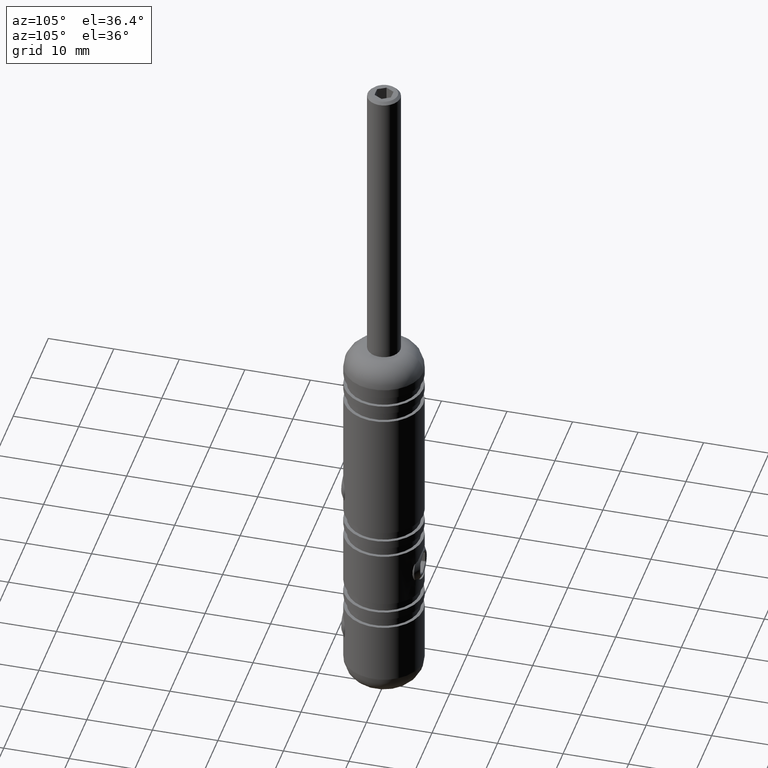
[diagram: clean part render]
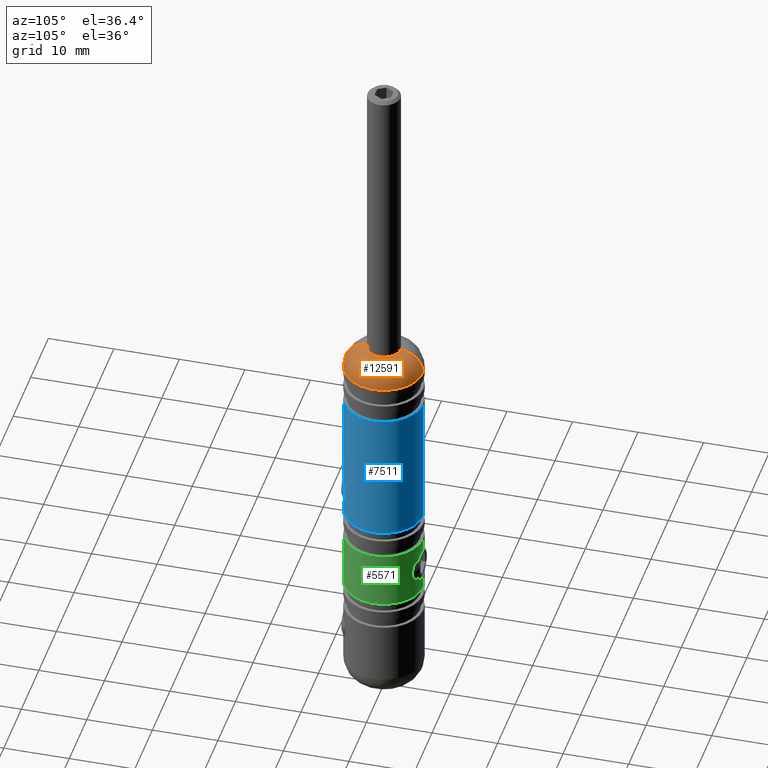
[diagram: same view with three faces highlighted in distinct colors, each labeled with its STEP entity id]
A machine part, auxiliary view with three faces highlighted in distinct colors.
Their STEP definitions:

[orange] entity #12591 — the highlighted toroidal blend (fillet) surface has major radius 2.5 mm and minor (blend) radius 3.5 mm.
#338 = EDGE_CURVE ( 'NONE', #525, #11152, #6656, .T. ) ;
#525 = VERTEX_POINT ( 'NONE', #7956 ) ;
#706 = CARTESIAN_POINT ( 'NONE',  ( 0.0000000000000000000, 4.814824860968089600E-032, 30.00000000000000000 ) ) ;
#887 = CARTESIAN_POINT ( 'NONE',  ( 0.0000000000000000000, 2.499999999999988000, 30.00000000000000000 ) ) ;
#907 = DIRECTION ( 'NONE',  ( 0.0000000000000000000, 0.0000000000000000000, 1.000000000000000000 ) ) ;
#975 = ORIENTED_EDGE ( 'NONE', *, *, #10580, .F. ) ;
#1016 = AXIS2_PLACEMENT_3D ( 'NONE', #706, #6149, #8669 ) ;
#1847 = CARTESIAN_POINT ( 'NONE',  ( 0.0000000000000000000, -2.184542988610860100E-016, 26.50000000000000000 ) ) ;
#2082 = CARTESIAN_POINT ( 'NONE',  ( 3.061616997868367900E-016, -2.499999999999988500, 26.50000000000000000 ) ) ;
#3238 = DIRECTION ( 'NONE',  ( 0.0000000000000000000, 1.000000000000000000, 0.0000000000000000000 ) ) ;
#3432 = DIRECTION ( 'NONE',  ( 1.000000000000000000, 1.224646799147353200E-016, -7.643695938863093300E-033 ) ) ;
#4087 = TOROIDAL_SURFACE ( 'NONE', #12473, 2.499999999999988000, 3.500000000000000000 ) ;
#5781 = CIRCLE ( 'NONE', #1016, 2.499999999999988000 ) ;
#6149 = DIRECTION ( 'NONE',  ( -0.0000000000000000000, 6.241551396031028600E-017, 1.000000000000000000 ) ) ;
#6345 = CIRCLE ( 'NONE', #15465, 3.499999999999999600 ) ;
#6656 = CIRCLE ( 'NONE', #13097, 3.500000000000000000 ) ;
#6997 = CARTESIAN_POINT ( 'NONE',  ( 0.0000000000000000000, -2.184542988610859600E-016, 26.50000000000000000 ) ) ;
#7538 = VERTEX_POINT ( 'NONE', #13565 ) ;
#7830 = EDGE_LOOP ( 'NONE', ( #7903, #15190, #975, #11473 ) ) ;
#7903 = ORIENTED_EDGE ( 'NONE', *, *, #12693, .F. ) ;
#7956 = CARTESIAN_POINT ( 'NONE',  ( 5.204748896376236900E-016, -2.499999999999988000, 30.00000000000000000 ) ) ;
#8110 = DIRECTION ( 'NONE',  ( 0.0000000000000000000, 1.000000000000000000, -6.241551396031028600E-017 ) ) ;
#8273 = DIRECTION ( 'NONE',  ( 0.0000000000000000000, -6.241551396031028600E-017, -1.000000000000000000 ) ) ;
#8669 = DIRECTION ( 'NONE',  ( 0.0000000000000000000, 1.000000000000000000, 0.0000000000000000000 ) ) ;
#8958 = CIRCLE ( 'NONE', #15886, 5.999999999999987600 ) ;
#9004 = CARTESIAN_POINT ( 'NONE',  ( 0.0000000000000000000, 2.499999999999987600, 26.50000000000000000 ) ) ;
#9890 = VERTEX_POINT ( 'NONE', #887 ) ;
#10580 = EDGE_CURVE ( 'NONE', #7538, #11152, #8958, .T. ) ;
#11152 = VERTEX_POINT ( 'NONE', #17270 ) ;
#11241 = DIRECTION ( 'NONE',  ( 0.0000000000000000000, -6.241551396031028600E-017, -1.000000000000000000 ) ) ;
#11473 = ORIENTED_EDGE ( 'NONE', *, *, #15274, .F. ) ;
#12473 = AXIS2_PLACEMENT_3D ( 'NONE', #6997, #8273, #8110 ) ;
#12591 = ADVANCED_FACE ( 'NONE', ( #16209 ), #4087, .T. ) ;
#12693 = EDGE_CURVE ( 'NONE', #525, #9890, #5781, .T. ) ;
#12802 = DIRECTION ( 'NONE',  ( -1.224646799147353200E-016, 1.000000000000000000, 0.0000000000000000000 ) ) ;
#13097 = AXIS2_PLACEMENT_3D ( 'NONE', #2082, #3432, #12802 ) ;
#13565 = CARTESIAN_POINT ( 'NONE',  ( 7.347880794884104900E-016, 5.999999999999987600, 26.50000000000000000 ) ) ;
#15190 = ORIENTED_EDGE ( 'NONE', *, *, #338, .T. ) ;
#15274 = EDGE_CURVE ( 'NONE', #9890, #7538, #6345, .T. ) ;
#15465 = AXIS2_PLACEMENT_3D ( 'NONE', #9004, #16975, #907 ) ;
#15886 = AXIS2_PLACEMENT_3D ( 'NONE', #1847, #11241, #3238 ) ;
#16209 = FACE_OUTER_BOUND ( 'NONE', #7830, .T. ) ;
#16975 = DIRECTION ( 'NONE',  ( -1.000000000000000000, 0.0000000000000000000, -0.0000000000000000000 ) ) ;
#17270 = CARTESIAN_POINT ( 'NONE',  ( 0.0000000000000000000, -5.999999999999987600, 26.50000000000000000 ) ) ;

[blue] entity #7511 — the highlighted cylindrical surface (partial cylindrical patch) has radius 6 mm, axis along (0, 0, 1).
#6 = CARTESIAN_POINT ( 'NONE',  ( 2.244635986508916000, -5.564731696078988300, 5.262763928491105900 ) ) ;
#121 = CARTESIAN_POINT ( 'NONE',  ( 0.8115992888655349000, -5.946860788343231600, 1.779642376573267600 ) ) ;
#173 = CARTESIAN_POINT ( 'NONE',  ( 1.527725331987266800, -5.803883338356230000, 2.164516847262142100 ) ) ;
#185 = VERTEX_POINT ( 'NONE', #14910 ) ;
#359 = CARTESIAN_POINT ( 'NONE',  ( 0.0000000000000000000, -5.804642798308857600E-016, 20.69999999999999600 ) ) ;
#551 = DIRECTION ( 'NONE',  ( -0.0000000000000000000, 6.241551396031028600E-017, 1.000000000000000000 ) ) ;
#680 = LINE ( 'NONE', #16998, #1739 ) ;
#776 = DIRECTION ( 'NONE',  ( -0.0000000000000000000, 6.241551396031028600E-017, 1.000000000000000000 ) ) ;
#901 = VERTEX_POINT ( 'NONE', #10300 ) ;
#1112 = CARTESIAN_POINT ( 'NONE',  ( 1.986351737220498600, -5.662472930091956500, 5.676594465348904900 ) ) ;
#1348 = CARTESIAN_POINT ( 'NONE',  ( -2.528794934047958200E-018, -5.999999999999979600, 1.649999999999998100 ) ) ;
#1401 = CARTESIAN_POINT ( 'NONE',  ( 1.985776905186848100, -5.662680758676473600, 2.622596471327092600 ) ) ;
#1548 = CIRCLE ( 'NONE', #4089, 5.999999999999976900 ) ;
#1739 = VECTOR ( 'NONE', #14258, 1000.000000000000000 ) ;
#1931 = VERTEX_POINT ( 'NONE', #7787 ) ;
#2158 = ORIENTED_EDGE ( 'NONE', *, *, #15617, .F. ) ;
#2465 = VERTEX_POINT ( 'NONE', #4381 ) ;
#2567 = DIRECTION ( 'NONE',  ( 0.0000000000000000000, -1.000000000000000000, 0.0000000000000000000 ) ) ;
#2624 = CARTESIAN_POINT ( 'NONE',  ( 0.8121109664669667900, -5.946762593001419200, 6.520100002767609500 ) ) ;
#3218 = EDGE_CURVE ( 'NONE', #2465, #185, #1548, .T. ) ;
#3366 = AXIS2_PLACEMENT_3D ( 'NONE', #14449, #9089, #11740 ) ;
#3974 = CARTESIAN_POINT ( 'NONE',  ( 1.260060590211528700, -5.867820848286488200, 6.315280463528983600 ) ) ;
#4032 = CARTESIAN_POINT ( 'NONE',  ( 2.483167037994902200, -5.462156378440684400, 4.483100656855353500 ) ) ;
#4089 = AXIS2_PLACEMENT_3D ( 'NONE', #359, #8267, #9669 ) ;
#4201 = CARTESIAN_POINT ( 'NONE',  ( 0.1671054223428515800, -5.999999999999977800, 1.649999999999997900 ) ) ;
#4381 = CARTESIAN_POINT ( 'NONE',  ( 0.0000000000000000000, -5.999999999999977800, 20.69999999999999600 ) ) ;
#4792 = VERTEX_POINT ( 'NONE', #10882 ) ;
#5336 = CARTESIAN_POINT ( 'NONE',  ( 1.528716671483799400, -5.803628135650774800, 6.134746209234823900 ) ) ;
#5338 = DIRECTION ( 'NONE',  ( -0.0000000000000000000, 6.241551396031028600E-017, 1.000000000000000000 ) ) ;
#6380 = CARTESIAN_POINT ( 'NONE',  ( 1.884182109196807000, -5.697746658645198400, 5.801153226975873000 ) ) ;
#6864 = CARTESIAN_POINT ( 'NONE',  ( 0.6550088422699782400, -5.966320652023265200, 1.731765785666423300 ) ) ;
#7511 = ADVANCED_FACE ( 'NONE', ( #11814 ), #12996, .T. ) ;
#7787 = CARTESIAN_POINT ( 'NONE',  ( 0.0000000000000000000, -5.999999999999979600, 0.2999999999999916100 ) ) ;
#7800 = CARTESIAN_POINT ( 'NONE',  ( 0.6555787703010415000, -5.966290413473918100, 6.568161813088486200 ) ) ;
#7973 = CARTESIAN_POINT ( 'NONE',  ( 0.3316893159624693100, -5.993028201139766000, 6.633399338814675700 ) ) ;
#8144 = CARTESIAN_POINT ( 'NONE',  ( 2.166378616493326500, -5.596076034317142100, 2.891796857985022400 ) ) ;
#8203 = CARTESIAN_POINT ( 'NONE',  ( 1.654032730495417400, -5.768759283832320500, 2.268374034229544200 ) ) ;
#8267 = DIRECTION ( 'NONE',  ( -0.0000000000000000000, 6.241551396031028600E-017, 1.000000000000000000 ) ) ;
#9089 = DIRECTION ( 'NONE',  ( -0.0000000000000000000, 6.241551396031028600E-017, 1.000000000000000000 ) ) ;
#9317 = B_SPLINE_CURVE_WITH_KNOTS ( 'NONE', 3,
 ( #14619, #15942, #7973, #7800, #2624, #12028, #3974, #5336, #17121, #6380, #1112, #9370, #6, #14900, #16006, #4032, #13457, #9434, #13404, #10731, #8144, #1401, #12258, #8203, #173, #10846, #16122, #121, #6864, #9544, #4201, #1348 ),
 .UNSPECIFIED., .F., .F.,
 ( 4, 2, 2, 2, 2, 2, 2, 2, 2, 2, 2, 2, 2, 2, 2, 4 ),
 ( 0.007907415464232896200, 0.008401230926880314700, 0.008895046389527733200, 0.009388861852175153400, 0.009882677314822572000, 0.01037649277746999200, 0.01087030824011741100, 0.01136412370276482900, 0.01185793916541224800, 0.01284557009070708500, 0.01333938555335450300, 0.01383320101600192200, 0.01432701647864933900, 0.01482083194129675500, 0.01531464740394417400, 0.01580846286659159200 ),
 .UNSPECIFIED. ) ;
#9370 = CARTESIAN_POINT ( 'NONE',  ( 2.166263312547636500, -5.596114381308981800, 5.408327122135948400 ) ) ;
#9399 = LINE ( 'NONE', #10098, #13139 ) ;
#9434 = CARTESIAN_POINT ( 'NONE',  ( 2.500083187475624400, -5.454317928402368800, 3.821040787578748400 ) ) ;
#9544 = CARTESIAN_POINT ( 'NONE',  ( 0.3334989678857743800, -5.992895555958764200, 1.666922929660758200 ) ) ;
#9555 = ORIENTED_EDGE ( 'NONE', *, *, #9778, .T. ) ;
#9669 = DIRECTION ( 'NONE',  ( 0.0000000000000000000, -1.000000000000000000, 0.0000000000000000000 ) ) ;
#9778 = EDGE_CURVE ( 'NONE', #4792, #185, #10035, .T. ) ;
#9929 = EDGE_CURVE ( 'NONE', #17342, #2465, #9399, .T. ) ;
#9944 = ORIENTED_EDGE ( 'NONE', *, *, #16433, .T. ) ;
#9980 = CARTESIAN_POINT ( 'NONE',  ( 7.347880794884091100E-016, 5.999999999999977800, 30.00000000000000000 ) ) ;
#10035 = LINE ( 'NONE', #9980, #16687 ) ;
#10098 = CARTESIAN_POINT ( 'NONE',  ( 0.0000000000000000000, -5.999999999999977800, 30.00000000000000000 ) ) ;
#10300 = CARTESIAN_POINT ( 'NONE',  ( -2.528794934047958200E-018, -5.999999999999979600, 1.649999999999998100 ) ) ;
#10731 = CARTESIAN_POINT ( 'NONE',  ( 2.244716869438427000, -5.564698557009161400, 3.037411570348667000 ) ) ;
#10846 = CARTESIAN_POINT ( 'NONE',  ( 1.259538159729436600, -5.867927242172493500, 1.984439642035610100 ) ) ;
#10882 = CARTESIAN_POINT ( 'NONE',  ( 7.347880794884091100E-016, 5.999999999999976000, 0.2999999999999908900 ) ) ;
#10997 = AXIS2_PLACEMENT_3D ( 'NONE', #13229, #5338, #2567 ) ;
#11740 = DIRECTION ( 'NONE',  ( 0.0000000000000000000, -1.000000000000000000, 6.324512672832133000E-017 ) ) ;
#11814 = FACE_OUTER_BOUND ( 'NONE', #16168, .T. ) ;
#12028 = CARTESIAN_POINT ( 'NONE',  ( 1.114788231091695000, -5.897521238554069200, 6.393690140102768800 ) ) ;
#12258 = CARTESIAN_POINT ( 'NONE',  ( 1.883431010051970700, -5.697990486015779500, 2.498022948408077600 ) ) ;
#12504 = ORIENTED_EDGE ( 'NONE', *, *, #3218, .F. ) ;
#12996 = CYLINDRICAL_SURFACE ( 'NONE', #10997, 5.999999999999977800 ) ;
#13139 = VECTOR ( 'NONE', #776, 1000.000000000000000 ) ;
#13229 = CARTESIAN_POINT ( 'NONE',  ( 0.0000000000000000000, 0.0000000000000000000, 30.00000000000000000 ) ) ;
#13260 = CIRCLE ( 'NONE', #3366, 5.999999999999977800 ) ;
#13404 = CARTESIAN_POINT ( 'NONE',  ( 2.433024516705509100, -5.486245265971605900, 3.489077120949952300 ) ) ;
#13457 = CARTESIAN_POINT ( 'NONE',  ( 2.499958286588244600, -5.454375176628027500, 4.315426999768896500 ) ) ;
#13686 = ORIENTED_EDGE ( 'NONE', *, *, #9929, .F. ) ;
#14258 = DIRECTION ( 'NONE',  ( -0.0000000000000000000, 6.241551396031028600E-017, 1.000000000000000000 ) ) ;
#14449 = CARTESIAN_POINT ( 'NONE',  ( 0.0000000000000000000, -1.853740764621216100E-015, 0.2999999999999912700 ) ) ;
#14619 = CARTESIAN_POINT ( 'NONE',  ( -1.028502964275223300E-020, -5.999999999999979600, 6.649999999999996800 ) ) ;
#14757 = EDGE_CURVE ( 'NONE', #1931, #4792, #13260, .T. ) ;
#14900 = CARTESIAN_POINT ( 'NONE',  ( 2.370252263024603200, -5.512398186896856300, 4.961503839860643700 ) ) ;
#14910 = CARTESIAN_POINT ( 'NONE',  ( 7.347880794884091100E-016, 5.999999999999976000, 20.69999999999999600 ) ) ;
#15573 = ORIENTED_EDGE ( 'NONE', *, *, #14757, .T. ) ;
#15617 = EDGE_CURVE ( 'NONE', #1931, #901, #680, .T. ) ;
#15942 = CARTESIAN_POINT ( 'NONE',  ( 0.1646041220039579900, -5.999999999999979600, 6.649999999999997700 ) ) ;
#16006 = CARTESIAN_POINT ( 'NONE',  ( 2.418087471178595600, -5.491277066662521900, 4.805688621154089000 ) ) ;
#16122 = CARTESIAN_POINT ( 'NONE',  ( 1.116433988101043400, -5.897238488634671100, 1.907041280175431700 ) ) ;
#16161 = CARTESIAN_POINT ( 'NONE',  ( -1.028502964275223300E-020, -5.999999999999979600, 6.649999999999996800 ) ) ;
#16168 = EDGE_LOOP ( 'NONE', ( #15573, #9555, #12504, #13686, #9944, #2158 ) ) ;
#16433 = EDGE_CURVE ( 'NONE', #17342, #901, #9317, .T. ) ;
#16687 = VECTOR ( 'NONE', #551, 1000.000000000000000 ) ;
#16998 = CARTESIAN_POINT ( 'NONE',  ( 0.0000000000000000000, -5.999999999999977800, 30.00000000000000000 ) ) ;
#17121 = CARTESIAN_POINT ( 'NONE',  ( 1.654382943241682800, -5.768663301305672100, 6.031346931504434600 ) ) ;
#17342 = VERTEX_POINT ( 'NONE', #16161 ) ;

[green] entity #5571 — the highlighted cylindrical surface (partial cylindrical patch) has radius 6 mm, axis along (0, 0, 1).
#193 = VERTEX_POINT ( 'NONE', #12319 ) ;
#196 = DIRECTION ( 'NONE',  ( -0.0000000000000000000, 6.241551396031028600E-017, 1.000000000000000000 ) ) ;
#294 = EDGE_CURVE ( 'NONE', #7899, #13134, #8943, .T. ) ;
#295 = CARTESIAN_POINT ( 'NONE',  ( 7.347880794884094100E-016, 5.999999999999977800, -4.000000000000003600 ) ) ;
#407 = CARTESIAN_POINT ( 'NONE',  ( 7.347880794884094100E-016, 5.999999999999979600, 30.00000000000000000 ) ) ;
#656 = CARTESIAN_POINT ( 'NONE',  ( 0.0000000000000000000, -2.665142446105249500E-015, -12.70000000000000300 ) ) ;
#756 = ORIENTED_EDGE ( 'NONE', *, *, #1297, .T. ) ;
#834 = CARTESIAN_POINT ( 'NONE',  ( 0.3334989678857734300, 5.992895555958760700, -5.866922929660761500 ) ) ;
#949 = CARTESIAN_POINT ( 'NONE',  ( 1.259538159729433700, 5.867927242172488200, -6.184439642035615100 ) ) ;
#984 = VERTEX_POINT ( 'NONE', #6372 ) ;
#1198 = CARTESIAN_POINT ( 'NONE',  ( 0.0000000000000000000, -2.122127474650550100E-015, -4.000000000000003600 ) ) ;
#1297 = EDGE_CURVE ( 'NONE', #984, #7899, #3455, .T. ) ;
#1939 = DIRECTION ( 'NONE',  ( -0.0000000000000000000, 6.241551396031028600E-017, 1.000000000000000000 ) ) ;
#2329 = FACE_OUTER_BOUND ( 'NONE', #6164, .T. ) ;
#2534 = DIRECTION ( 'NONE',  ( -0.0000000000000000000, 6.241551396031028600E-017, 1.000000000000000000 ) ) ;
#2877 = B_SPLINE_CURVE_WITH_KNOTS ( 'NONE', 3,
 ( #11027, #12151, #13407, #5506, #5396, #13458, #5455, #12260, #14792, #6802, #14850, #16177, #10909, #6922, #4374, #5736, #12418, #4315, #6227, #7694, #15658, #4933, #13001, #17015, #13060, #949, #3694, #8855, #9047, #834, #5058, #10266 ),
 .UNSPECIFIED., .F., .F.,
 ( 4, 2, 2, 2, 2, 2, 2, 2, 2, 2, 2, 2, 2, 2, 2, 4 ),
 ( 0.007907415464232894400, 0.008401230926880314700, 0.008895046389527733200, 0.009388861852175153400, 0.009882677314822572000, 0.01037649277746999200, 0.01087030824011741100, 0.01136412370276483100, 0.01185793916541225100, 0.01284557009070708500, 0.01333938555335450000, 0.01383320101600191800, 0.01432701647864933300, 0.01482083194129675200, 0.01531464740394416700, 0.01580846286659158600 ),
 .UNSPECIFIED. ) ;
#3252 = CARTESIAN_POINT ( 'NONE',  ( 1.289730737622532200E-016, 5.999999999999976900, -5.850000000000003200 ) ) ;
#3455 = CIRCLE ( 'NONE', #7229, 5.999999999999980500 ) ;
#3694 = CARTESIAN_POINT ( 'NONE',  ( 1.116433988101039900, 5.897238488634667600, -6.107041280175433700 ) ) ;
#4000 = DIRECTION ( 'NONE',  ( -0.0000000000000000000, 6.241551396031028600E-017, 1.000000000000000000 ) ) ;
#4115 = DIRECTION ( 'NONE',  ( 0.0000000000000000000, -1.000000000000000000, 0.0000000000000000000 ) ) ;
#4315 = CARTESIAN_POINT ( 'NONE',  ( 2.500083187475624000, 5.454317928402367100, -8.021040787578753500 ) ) ;
#4374 = CARTESIAN_POINT ( 'NONE',  ( 2.418087471178595600, 5.491277066662517500, -9.005688621154094500 ) ) ;
#4933 = CARTESIAN_POINT ( 'NONE',  ( 1.985776905186848100, 5.662680758676469100, -6.822596471327099000 ) ) ;
#5058 = CARTESIAN_POINT ( 'NONE',  ( 0.1671054223428513900, 5.999999999999974200, -5.850000000000005000 ) ) ;
#5396 = CARTESIAN_POINT ( 'NONE',  ( 0.8121109664669686800, 5.946762593001416500, -10.72010000276761200 ) ) ;
#5455 = CARTESIAN_POINT ( 'NONE',  ( 1.260060590211529800, 5.867820848286483800, -10.51528046352898500 ) ) ;
#5506 = CARTESIAN_POINT ( 'NONE',  ( 0.6555787703010428300, 5.966290413473914500, -10.76816181308849000 ) ) ;
#5571 = ADVANCED_FACE ( 'NONE', ( #2329 ), #12609, .T. ) ;
#5736 = CARTESIAN_POINT ( 'NONE',  ( 2.483167037994902200, 5.462156378440683500, -8.683100656855360800 ) ) ;
#5854 = DIRECTION ( 'NONE',  ( -0.0000000000000000000, 6.241551396031028600E-017, 1.000000000000000000 ) ) ;
#6046 = DIRECTION ( 'NONE',  ( 0.0000000000000000000, -1.000000000000000000, 0.0000000000000000000 ) ) ;
#6164 = EDGE_LOOP ( 'NONE', ( #756, #17324, #10240, #16682, #16362, #8973 ) ) ;
#6225 = VERTEX_POINT ( 'NONE', #295 ) ;
#6227 = CARTESIAN_POINT ( 'NONE',  ( 2.433024516705508200, 5.486245265971605000, -7.689077120949956000 ) ) ;
#6372 = CARTESIAN_POINT ( 'NONE',  ( 0.0000000000000000000, -5.999999999999983100, -12.70000000000000300 ) ) ;
#6772 = CARTESIAN_POINT ( 'NONE',  ( 0.0000000000000000000, -5.999999999999979600, 30.00000000000000000 ) ) ;
#6802 = CARTESIAN_POINT ( 'NONE',  ( 1.884182109196807800, 5.697746658645193000, -10.00115322697587800 ) ) ;
#6922 = CARTESIAN_POINT ( 'NONE',  ( 2.370252263024602800, 5.512398186896851900, -9.161503839860648300 ) ) ;
#7229 = AXIS2_PLACEMENT_3D ( 'NONE', #656, #1939, #6046 ) ;
#7571 = VECTOR ( 'NONE', #4000, 1000.000000000000000 ) ;
#7643 = EDGE_CURVE ( 'NONE', #13134, #13322, #2877, .T. ) ;
#7694 = CARTESIAN_POINT ( 'NONE',  ( 2.244716869438425600, 5.564698557009159600, -7.237411570348670300 ) ) ;
#7899 = VERTEX_POINT ( 'NONE', #9613 ) ;
#8173 = CARTESIAN_POINT ( 'NONE',  ( 0.0000000000000000000, 0.0000000000000000000, 30.00000000000000000 ) ) ;
#8762 = AXIS2_PLACEMENT_3D ( 'NONE', #1198, #2534, #4115 ) ;
#8855 = CARTESIAN_POINT ( 'NONE',  ( 0.8115992888655319000, 5.946860788343231600, -5.979642376573274000 ) ) ;
#8943 = LINE ( 'NONE', #407, #12520 ) ;
#8973 = ORIENTED_EDGE ( 'NONE', *, *, #17014, .F. ) ;
#9047 = CARTESIAN_POINT ( 'NONE',  ( 0.6550088422699768000, 5.966320652023262600, -5.931765785666429200 ) ) ;
#9613 = CARTESIAN_POINT ( 'NONE',  ( 7.347880794884094100E-016, 5.999999999999977800, -12.70000000000000300 ) ) ;
#10240 = ORIENTED_EDGE ( 'NONE', *, *, #7643, .T. ) ;
#10266 = CARTESIAN_POINT ( 'NONE',  ( 1.289730737622532200E-016, 5.999999999999976900, -5.850000000000003200 ) ) ;
#10909 = CARTESIAN_POINT ( 'NONE',  ( 2.244635986508916900, 5.564731696078986500, -9.462763928491108700 ) ) ;
#11003 = LINE ( 'NONE', #12670, #15760 ) ;
#11027 = CARTESIAN_POINT ( 'NONE',  ( 7.347777944808310000E-016, 5.999999999999976900, -10.85000000000000100 ) ) ;
#12151 = CARTESIAN_POINT ( 'NONE',  ( 0.1646041220039590500, 5.999999999999976900, -10.85000000000000300 ) ) ;
#12260 = CARTESIAN_POINT ( 'NONE',  ( 1.528716671483801000, 5.803628135650772200, -10.33474620923482900 ) ) ;
#12267 = CIRCLE ( 'NONE', #8762, 5.999999999999979600 ) ;
#12319 = CARTESIAN_POINT ( 'NONE',  ( 0.0000000000000000000, -5.999999999999981300, -4.000000000000003600 ) ) ;
#12418 = CARTESIAN_POINT ( 'NONE',  ( 2.499958286588244600, 5.454375176628026600, -8.515426999768902000 ) ) ;
#12520 = VECTOR ( 'NONE', #5854, 1000.000000000000000 ) ;
#12609 = CYLINDRICAL_SURFACE ( 'NONE', #13745, 5.999999999999979600 ) ;
#12670 = CARTESIAN_POINT ( 'NONE',  ( 7.347880794884094100E-016, 5.999999999999979600, 30.00000000000000000 ) ) ;
#13001 = CARTESIAN_POINT ( 'NONE',  ( 1.883431010051969300, 5.697990486015776000, -6.698022948408081800 ) ) ;
#13060 = CARTESIAN_POINT ( 'NONE',  ( 1.527725331987265500, 5.803883338356229200, -6.364516847262149400 ) ) ;
#13134 = VERTEX_POINT ( 'NONE', #16548 ) ;
#13322 = VERTEX_POINT ( 'NONE', #3252 ) ;
#13407 = CARTESIAN_POINT ( 'NONE',  ( 0.3316893159624704800, 5.993028201139764200, -10.83339933881468100 ) ) ;
#13458 = CARTESIAN_POINT ( 'NONE',  ( 1.114788231091697400, 5.897521238554064700, -10.59369014010277600 ) ) ;
#13745 = AXIS2_PLACEMENT_3D ( 'NONE', #8173, #196, #14816 ) ;
#13753 = EDGE_CURVE ( 'NONE', #13322, #6225, #11003, .T. ) ;
#14400 = EDGE_CURVE ( 'NONE', #193, #6225, #12267, .T. ) ;
#14792 = CARTESIAN_POINT ( 'NONE',  ( 1.654382943241684800, 5.768663301305667600, -10.23134693150443700 ) ) ;
#14816 = DIRECTION ( 'NONE',  ( 0.0000000000000000000, -1.000000000000000000, 0.0000000000000000000 ) ) ;
#14850 = CARTESIAN_POINT ( 'NONE',  ( 1.986351737220499100, 5.662472930091951200, -9.876594465348906800 ) ) ;
#15292 = LINE ( 'NONE', #6772, #7571 ) ;
#15658 = CARTESIAN_POINT ( 'NONE',  ( 2.166378616493326100, 5.596076034317141200, -7.091796857985028300 ) ) ;
#15760 = VECTOR ( 'NONE', #16565, 1000.000000000000000 ) ;
#16177 = CARTESIAN_POINT ( 'NONE',  ( 2.166263312547636500, 5.596114381308977300, -9.608327122135952100 ) ) ;
#16362 = ORIENTED_EDGE ( 'NONE', *, *, #14400, .F. ) ;
#16548 = CARTESIAN_POINT ( 'NONE',  ( 7.347777944808310000E-016, 5.999999999999976900, -10.85000000000000100 ) ) ;
#16565 = DIRECTION ( 'NONE',  ( -0.0000000000000000000, 6.241551396031028600E-017, 1.000000000000000000 ) ) ;
#16682 = ORIENTED_EDGE ( 'NONE', *, *, #13753, .T. ) ;
#17014 = EDGE_CURVE ( 'NONE', #984, #193, #15292, .T. ) ;
#17015 = CARTESIAN_POINT ( 'NONE',  ( 1.654032730495416100, 5.768759283832320500, -6.468374034229551500 ) ) ;
#17324 = ORIENTED_EDGE ( 'NONE', *, *, #294, .T. ) ;